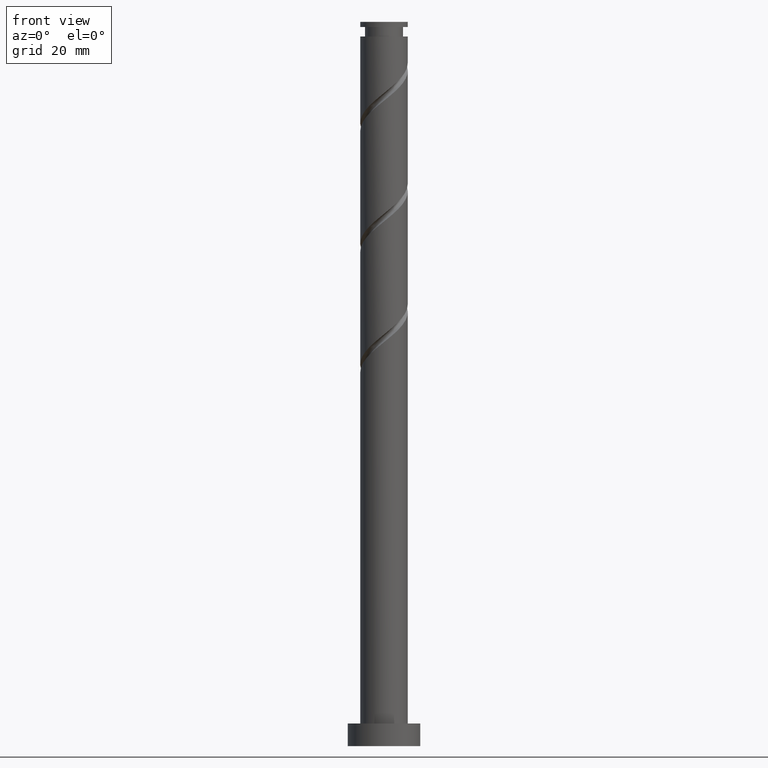
[diagram: clean part render]
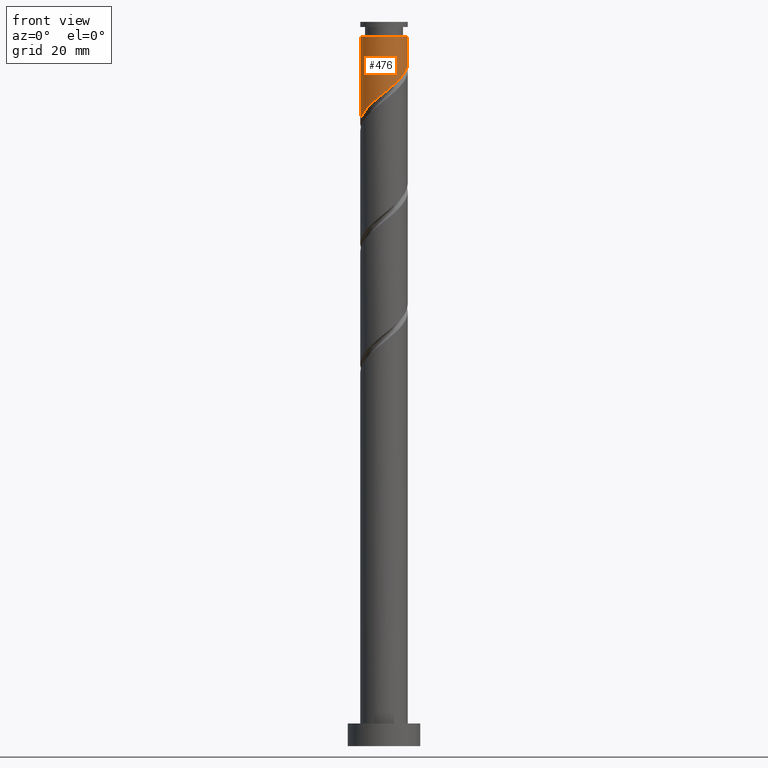
[diagram: same view with one face highlighted and labeled with its STEP entity id]
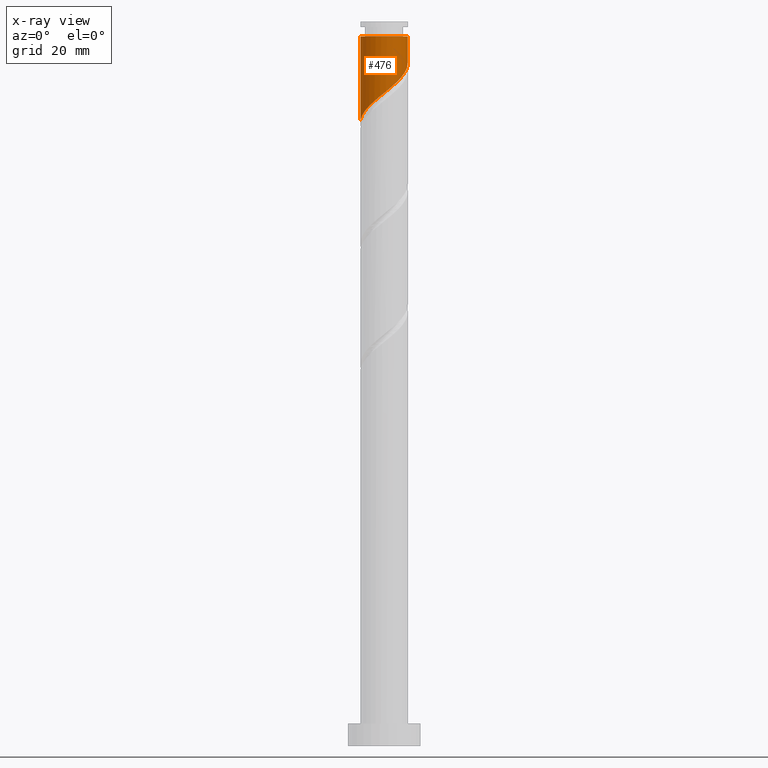
[diagram: x-ray of the same camera — body ghosted, the highlighted face saturated]
A machine part, front view. The second image highlights one B-rep face of the part: STEP entity #476.
The next image is the same camera in x-ray: the body ghosted, the highlighted face saturated — about 0% of this face is hidden behind the body in this view.
In plain terms, the highlighted cylindrical surface (edge-blend (fillet) strip) has radius 5.25 mm, axis along (-0, -0, -1).
Its self-contained STEP definition (entity closure, byte-faithful):
#29 = EDGE_CURVE ( 'NONE', #46, #295, #619, .T. ) ;
#46 = VERTEX_POINT ( 'NONE', #1518 ) ;
#57 = EDGE_LOOP ( 'NONE', ( #467, #1022, #984, #297 ) ) ;
#83 = VERTEX_POINT ( 'NONE', #1655 ) ;
#105 = CARTESIAN_POINT ( 'NONE',  ( -5.114055971177476678, -1.186984213738331961, 138.5875385113552625 ) ) ;
#160 = LINE ( 'NONE', #1048, #1140 ) ;
#182 = CARTESIAN_POINT ( 'NONE',  ( 0.000000000000000000, 0.000000000000000000, 160.0000000000000000 ) ) ;
#212 = DIRECTION ( 'NONE',  ( -0.000000000000000000, -0.000000000000000000, -1.000000000000000000 ) ) ;
#214 = CARTESIAN_POINT ( 'NONE',  ( 5.241312868482967957, -0.3018930517167535688, 150.7087506325674440 ) ) ;
#222 = CARTESIAN_POINT ( 'NONE',  ( -1.784476131566090196, -4.994789523933699904, 142.8299627537795402 ) ) ;
#258 = CARTESIAN_POINT ( 'NONE',  ( -5.250000000000001776, -0.6012768687718920146, 138.1047711254456374 ) ) ;
#295 = VERTEX_POINT ( 'NONE', #1447 ) ;
#297 = ORIENTED_EDGE ( 'NONE', *, *, #29, .F. ) ;
#332 = CARTESIAN_POINT ( 'NONE',  ( 1.902708474391032745, -4.893076788839569424, 145.8602657840825714 ) ) ;
#338 = CARTESIAN_POINT ( 'NONE',  ( 4.246057261020518503, -3.087636270051078213, 148.2845082083249793 ) ) ;
#344 = CYLINDRICAL_SURFACE ( 'NONE', #1087, 5.250000000000000000 ) ;
#348 = CARTESIAN_POINT ( 'NONE',  ( 2.606226707476788640, -4.619508610421848793, 146.4663263901431662 ) ) ;
#398 = AXIS2_PLACEMENT_3D ( 'NONE', #1479, #212, #1224 ) ;
#425 = EDGE_CURVE ( 'NONE', #83, #1590, #957, .T. ) ;
#459 = EDGE_CURVE ( 'NONE', #83, #46, #1103, .T. ) ;
#467 = ORIENTED_EDGE ( 'NONE', *, *, #459, .F. ) ;
#475 = DIRECTION ( 'NONE',  ( -0.000000000000000000, -0.000000000000000000, -1.000000000000000000 ) ) ;
#476 = ADVANCED_FACE ( 'NONE', ( #1487 ), #344, .T. ) ;
#602 = CARTESIAN_POINT ( 'NONE',  ( 5.250000000000001776, -0.1510715142500684560, 150.8300465010894698 ) ) ;
#619 =( BOUNDED_CURVE ( )  B_SPLINE_CURVE ( 2, ( #967, #602, #214, #959, #1090, #726, #338, #1475, #846, #348, #332, #1106, #1616, #1492, #1354, #222, #1509, #1538, #648, #1266, #907, #1010, #105, #258, #1529 ),
 .UNSPECIFIED., .F., .T. ) 
 B_SPLINE_CURVE_WITH_KNOTS ( ( 3, 2, 2, 2, 2, 2, 2, 2, 2, 2, 2, 2, 3 ),
 ( 0.3045252162417513286, 0.3068181818181818232, 0.3181818181818181768, 0.3295454545454545303, 0.3409090909090908839, 0.3522727272727272929, 0.3636363636363636465, 0.3750000000000000000, 0.3863636363636363535, 0.3977272727272727071, 0.4090909090909091161, 0.4204545454545454697, 0.4295252162417513841 ),
 .UNSPECIFIED. ) 
 CURVE ( )  GEOMETRIC_REPRESENTATION_ITEM ( )  RATIONAL_B_SPLINE_CURVE ( ( 0.9061101570135542405, 0.9072237824201363487, 0.9090909090909138346, 0.8998376744372161840, 0.9090909090909138346, 0.8998376744372161840, 0.9090909090909138346, 0.8998376744372161840, 0.9090909090909138346, 0.8998376744372161840, 0.9090909090909138346, 0.8998376744372161840, 0.9090909090909138346, 0.8998376744372161840, 0.9090909090909138346, 0.8998376744372161840, 0.9090909090909138346, 0.8998376744372161840, 0.9090909090909138346, 0.8998376744372161840, 0.9090909090909138346, 0.8998376744372161840, 0.9090909090909138346, 0.9017048011079935588, 0.9061101570135543515 ) ) 
 REPRESENTATION_ITEM ( '' )  );
#648 = CARTESIAN_POINT ( 'NONE',  ( -3.660485537227067265, -3.763422063993283384, 141.0117809355977272 ) ) ;
#726 = CARTESIAN_POINT ( 'NONE',  ( 4.689992336405464535, -2.477145400856580970, 148.8905688143856025 ) ) ;
#846 = CARTESIAN_POINT ( 'NONE',  ( 3.204174446556178779, -4.158817874833713901, 147.0723869962037895 ) ) ;
#907 = CARTESIAN_POINT ( 'NONE',  ( -4.572488673549138127, -2.579699077463270207, 139.7996597234765375 ) ) ;
#957 = CIRCLE ( 'NONE', #398, 5.249999999999994671 ) ;
#959 = CARTESIAN_POINT ( 'NONE',  ( 5.197907200538196548, -1.055480074241133881, 150.1026900265068491 ) ) ;
#967 = CARTESIAN_POINT ( 'NONE',  ( 5.250000000000000000, 8.824524215062944292E-16, 150.9521445058076949 ) ) ;
#984 = ORIENTED_EDGE ( 'NONE', *, *, #1017, .T. ) ;
#1010 = CARTESIAN_POINT ( 'NONE',  ( -4.943393405927213990, -1.922274456669037068, 139.1935991174158858 ) ) ;
#1017 = EDGE_CURVE ( 'NONE', #1590, #295, #160, .T. ) ;
#1022 = ORIENTED_EDGE ( 'NONE', *, *, #425, .T. ) ;
#1048 = CARTESIAN_POINT ( 'NONE',  ( -5.250000000000000000, 0.000000000000000000, 160.0000000000000000 ) ) ;
#1087 = AXIS2_PLACEMENT_3D ( 'NONE', #182, #1119, #1360 ) ;
#1090 = CARTESIAN_POINT ( 'NONE',  ( 4.943949768471830986, -1.766312737548856537, 149.4966294204462258 ) ) ;
#1103 = LINE ( 'NONE', #1614, #1568 ) ;
#1106 = CARTESIAN_POINT ( 'NONE',  ( 1.199190241305277516, -5.166644967257291832, 145.2542051780220049 ) ) ;
#1119 = DIRECTION ( 'NONE',  ( -0.000000000000000000, -0.000000000000000000, -1.000000000000000000 ) ) ;
#1140 = VECTOR ( 'NONE', #1563, 1000.000000000000000 ) ;
#1194 = CARTESIAN_POINT ( 'NONE',  ( -5.249999999999994671, 0.000000000000000000, 156.7693566931734495 ) ) ;
#1224 = DIRECTION ( 'NONE',  ( -1.000000000000000000, 0.000000000000000000, 0.000000000000000000 ) ) ;
#1266 = CARTESIAN_POINT ( 'NONE',  ( -4.201583941171064041, -3.237123698257502902, 140.4057203295371039 ) ) ;
#1354 = CARTESIAN_POINT ( 'NONE',  ( -1.044736808961952645, -5.144999999999999574, 143.4360233598401635 ) ) ;
#1360 = DIRECTION ( 'NONE',  ( -1.000000000000000000, 0.000000000000000000, 0.000000000000000000 ) ) ;
#1447 = CARTESIAN_POINT ( 'NONE',  ( -5.250000000000000000, -1.899516229344057856E-15, 137.6188111724743237 ) ) ;
#1475 = CARTESIAN_POINT ( 'NONE',  ( 3.802122185635572471, -3.698127139245577233, 147.6784476022643844 ) ) ;
#1479 = CARTESIAN_POINT ( 'NONE',  ( 0.000000000000000000, 0.000000000000000000, 156.7693566931734495 ) ) ;
#1487 = FACE_OUTER_BOUND ( 'NONE', #57, .T. ) ;
#1492 = CARTESIAN_POINT ( 'NONE',  ( -0.3049974863578157058, -5.295210476066303684, 144.0420839659007584 ) ) ;
#1509 = CARTESIAN_POINT ( 'NONE',  ( -2.451931632424580343, -4.642254976831381441, 142.2239021477189169 ) ) ;
#1518 = CARTESIAN_POINT ( 'NONE',  ( 5.250000000000000000, 8.824524215062944292E-16, 150.9521445058076949 ) ) ;
#1529 = CARTESIAN_POINT ( 'NONE',  ( -5.250000000000000000, -1.899516229344057856E-15, 137.6188111724743237 ) ) ;
#1538 = CARTESIAN_POINT ( 'NONE',  ( -3.119387133283070934, -4.289720429729066531, 141.6178415416583221 ) ) ;
#1563 = DIRECTION ( 'NONE',  ( -0.000000000000000000, -0.000000000000000000, -1.000000000000000000 ) ) ;
#1568 = VECTOR ( 'NONE', #475, 1000.000000000000000 ) ;
#1590 = VERTEX_POINT ( 'NONE', #1194 ) ;
#1614 = CARTESIAN_POINT ( 'NONE',  ( 5.250000000000000000, 6.429395695523604153E-16, 160.0000000000000000 ) ) ;
#1616 = CARTESIAN_POINT ( 'NONE',  ( 0.4470963774737297669, -5.230927721661797314, 144.6481445719613532 ) ) ;
#1655 = CARTESIAN_POINT ( 'NONE',  ( 5.249999999999994671, 6.429395695523600208E-16, 156.7693566931734495 ) ) ;